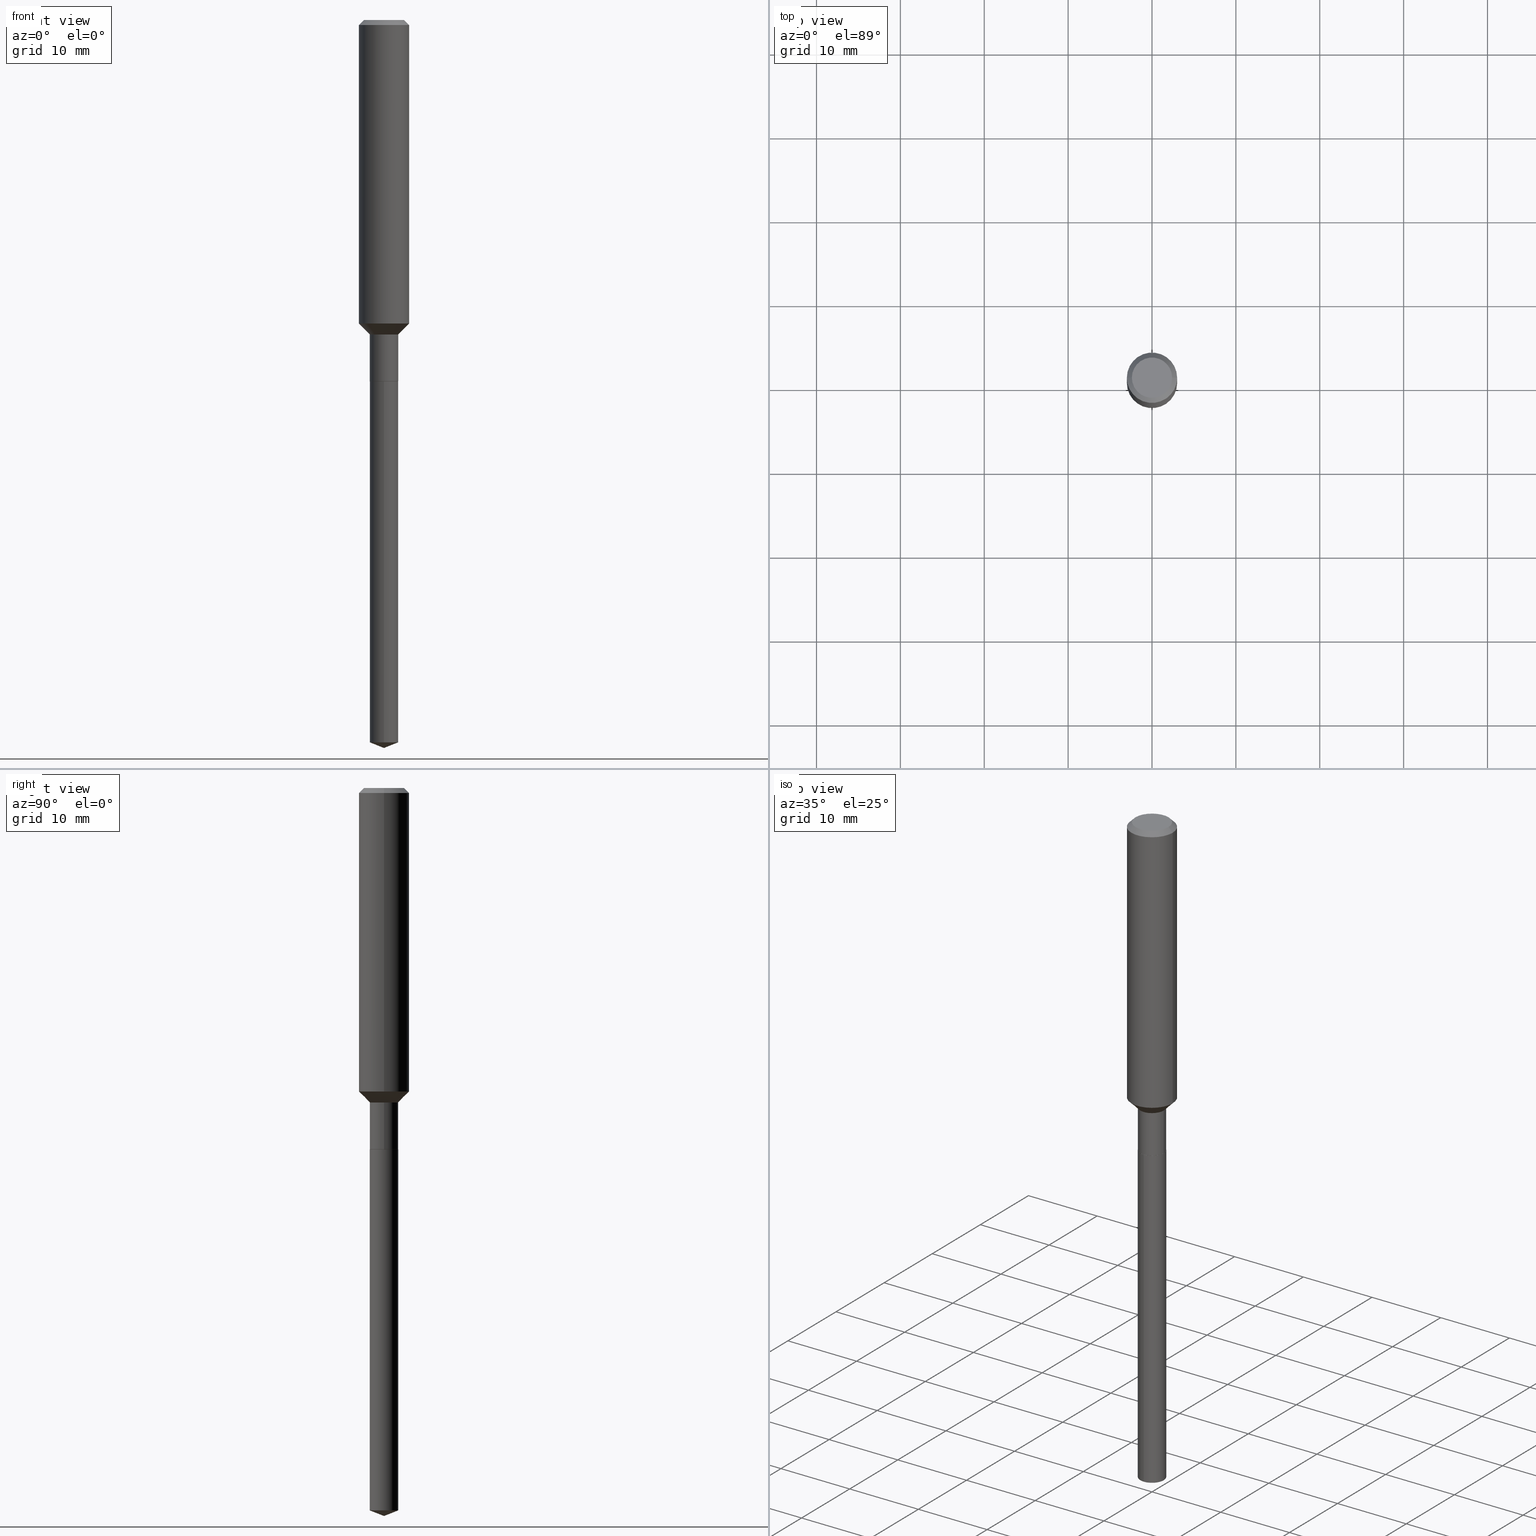
[diagram: canonical four-view strip — front | top / right | iso, engineering-drawing reading convention]
A machine part, canonical four-view strip (front | top / right | iso — engineering-drawing reading convention). The complete STEP part file that produces these views, byte-faithful:
ISO-10303-21;
HEADER;
FILE_DESCRIPTION (( 'STEP AP203' ),
    '1' );
FILE_NAME ('66713.STEP',
    '2024-04-25T04:18:22',
    ( '' ),
    ( '' ),
    'SwSTEP 2.0',
    'SolidWorks 2023',
    '' );
FILE_SCHEMA (( 'CONFIG_CONTROL_DESIGN' ));
ENDSEC;

DATA;
#1 = CARTESIAN_POINT ( 'NONE',  ( 0.06644999999999999518, -6.387665109413531627E-15, -1.696599999999999664 ) ) ;
#2 = AXIS2_PLACEMENT_3D ( 'NONE', #369, #33, #214 ) ;
#3 = EDGE_CURVE ( 'NONE', #360, #18, #206, .T. ) ;
#4 = DIRECTION ( 'NONE',  ( -2.445468806185136597E-29, 3.491481338843145583E-15, 1.000000000000000000 ) ) ;
#5 = DATE_AND_TIME ( #186, #20 ) ;
#6 = CYLINDRICAL_SURFACE ( 'NONE', #448, 0.1181000000000000799 ) ;
#7 = PERSON_AND_ORGANIZATION_ROLE ( 'creator' ) ;
#8 = CARTESIAN_POINT ( 'NONE',  ( 3.609267411048642290E-29, -5.153077307998597760E-15, -1.475899999999999768 ) ) ;
#9 = PERSON_AND_ORGANIZATION ( #481, #216 ) ;
#10 = EDGE_LOOP ( 'NONE', ( #167, #246, #301 ) ) ;
#11 = CC_DESIGN_DATE_AND_TIME_ASSIGNMENT ( #83, #228, ( #192 ) ) ;
#12 = AXIS2_PLACEMENT_3D ( 'NONE', #410, #368, #253 ) ;
#13 = CC_DESIGN_APPROVAL ( #304, ( #262 ) ) ;
#14 = CARTESIAN_POINT ( 'NONE',  ( 4.148982376573702173E-29, -5.923647239481279412E-15, -1.696599999999999664 ) ) ;
#15 = COORDINATED_UNIVERSAL_TIME_OFFSET ( 5, 0, .BEHIND. ) ;
#16 = DIRECTION ( 'NONE',  ( -2.445468806185136597E-29, 3.491481338843145583E-15, 1.000000000000000000 ) ) ;
#17 = CARTESIAN_POINT ( 'NONE',  ( 4.148982376573702173E-29, -5.923647239481279412E-15, -1.696599999999999664 ) ) ;
#18 = VERTEX_POINT ( 'NONE', #365 ) ;
#19 = AXIS2_PLACEMENT_3D ( 'NONE', #185, #4, #112 ) ;
#20 = LOCAL_TIME ( 0, 18, 22.00000000000000000, #461 ) ;
#21 = PLANE ( 'NONE',  #449 ) ;
#22 = DIRECTION ( 'NONE',  ( 1.000000000000000000, -6.982962677686262766E-15, 0.000000000000000000 ) ) ;
#23 = ORIENTED_EDGE ( 'NONE', *, *, #273, .T. ) ;
#24 = LINE ( 'NONE', #165, #215 ) ;
#25 = DIRECTION ( 'NONE',  ( -2.440812294718397094E-29, 3.498149728295689980E-15, 1.000000000000000000 ) ) ;
#26 = CARTESIAN_POINT ( 'NONE',  ( 4.148982376573702173E-29, -5.923647239481279412E-15, -1.696599999999999664 ) ) ;
#27 = ORIENTED_EDGE ( 'NONE', *, *, #183, .T. ) ;
#28 = CONICAL_SURFACE ( 'NONE', #231, 0.06644999999999999518, 0.7853981633975507526 ) ;
#29 = DIRECTION ( 'NONE',  ( -2.445468806185136597E-29, 3.491481338843145583E-15, 1.000000000000000000 ) ) ;
#30 = PLANE ( 'NONE',  #159 ) ;
#31 = DIRECTION ( 'NONE',  ( -1.000000000000000000, 6.982962677686265922E-15, -4.876176775795935793E-29 ) ) ;
#32 = CIRCLE ( 'NONE', #458, 0.06694999999999996787 ) ;
#33 = DIRECTION ( 'NONE',  ( -2.440812294718397094E-29, 3.498149728295689980E-15, 1.000000000000000000 ) ) ;
#34 = FACE_OUTER_BOUND ( 'NONE', #247, .T. ) ;
#35 = DIRECTION ( 'NONE',  ( -2.440812294718397375E-29, 3.498149728295689980E-15, 1.000000000000000000 ) ) ;
#36 = DIRECTION ( 'NONE',  ( 1.000000000000000000, -6.982962677686267499E-15, 4.875432709231658792E-29 ) ) ;
#37 = VECTOR ( 'NONE', #64, 39.37007874015748143 ) ;
#38 = APPROVAL_STATUS ( 'not_yet_approved' ) ;
#39 = CC_DESIGN_SECURITY_CLASSIFICATION ( #192, ( #262 ) ) ;
#40 = VERTEX_POINT ( 'NONE', #478 ) ;
#41 = EDGE_CURVE ( 'NONE', #484, #325, #229, .T. ) ;
#42 = EDGE_LOOP ( 'NONE', ( #311, #472 ) ) ;
#43 = LINE ( 'NONE', #151, #102 ) ;
#44 = SHAPE_DEFINITION_REPRESENTATION ( #171, #133 ) ;
#45 = ORIENTED_EDGE ( 'NONE', *, *, #41, .T. ) ;
#46 = COORDINATED_UNIVERSAL_TIME_OFFSET ( 5, 0, .BEHIND. ) ;
#47 = EDGE_LOOP ( 'NONE', ( #270, #55, #317, #187 ) ) ;
#48 = CIRCLE ( 'NONE', #457, 0.06694999999999996787 ) ;
#49 = DIRECTION ( 'NONE',  ( 1.000000000000000000, -6.982962677686266711E-15, 4.876176775795936353E-29 ) ) ;
#50 = VERTEX_POINT ( 'NONE', #476 ) ;
#51 = EDGE_CURVE ( 'NONE', #160, #84, #343, .T. ) ;
#52 = DIRECTION ( 'NONE',  ( 1.000000000000000000, -6.982962677686272233E-15, 0.000000000000000000 ) ) ;
#53 = ORIENTED_EDGE ( 'NONE', *, *, #134, .T. ) ;
#54 = CARTESIAN_POINT ( 'NONE',  ( -0.06694999999999996787, -4.677368946407211013E-15, -1.475899999999999768 ) ) ;
#55 = ORIENTED_EDGE ( 'NONE', *, *, #321, .T. ) ;
#56 = VECTOR ( 'NONE', #445, 39.37007874015748143 ) ;
#57 = APPROVAL_PERSON_ORGANIZATION ( #71, #304, #239 ) ;
#58 = EDGE_CURVE ( 'NONE', #342, #40, #471, .T. ) ;
#59 = ORIENTED_EDGE ( 'NONE', *, *, #3, .T. ) ;
#60 = ORIENTED_EDGE ( 'NONE', *, *, #312, .F. ) ;
#61 = CARTESIAN_POINT ( 'NONE',  ( 4.148982376573702173E-29, -5.923647239481279412E-15, -1.696599999999999664 ) ) ;
#62 = CARTESIAN_POINT ( 'NONE',  ( 4.757083615914697751E-16, 0.06694999999998814399, -3.390627693657579655 ) ) ;
#63 = ORIENTED_EDGE ( 'NONE', *, *, #51, .T. ) ;
#64 = DIRECTION ( 'NONE',  ( 0.7071067811865459074, -7.319954787623251312E-15, -0.7071067811865492381 ) ) ;
#65 = CIRCLE ( 'NONE', #12, 0.1180999999999999966 ) ;
#66 = AXIS2_PLACEMENT_3D ( 'NONE', #126, #234, #194 ) ;
#67 = LINE ( 'NONE', #144, #37 ) ;
#68 = ADVANCED_FACE ( 'NONE', ( #357 ), #131, .F. ) ;
#69 = DIRECTION ( 'NONE',  ( -2.445468806185136597E-29, 3.491481338843145583E-15, 1.000000000000000000 ) ) ;
#70 = LINE ( 'NONE', #106, #56 ) ;
#71 = PERSON_AND_ORGANIZATION ( #481, #216 ) ;
#72 = DIRECTION ( 'NONE',  ( -2.445468806185136597E-29, 3.491481338843145583E-15, 1.000000000000000000 ) ) ;
#73 = ORIENTED_EDGE ( 'NONE', *, *, #148, .F. ) ;
#74 = FACE_OUTER_BOUND ( 'NONE', #92, .T. ) ;
#75 = AXIS2_PLACEMENT_3D ( 'NONE', #88, #235, #240 ) ;
#76 = COORDINATED_UNIVERSAL_TIME_OFFSET ( 5, 0, .BEHIND. ) ;
#77 = ORIENTED_EDGE ( 'NONE', *, *, #337, .T. ) ;
#78 = APPROVAL ( #38, 'UNSPECIFIED' ) ;
#79 = APPROVAL_ROLE ( '' ) ;
#80 = ORIENTED_EDGE ( 'NONE', *, *, #451, .F. ) ;
#81 = APPROVAL_DATE_TIME ( #264, #304 ) ;
#82 = DIRECTION ( 'NONE',  ( -2.445468806185136597E-29, 3.491481338843145583E-15, 1.000000000000000000 ) ) ;
#83 = DATE_AND_TIME ( #158, #114 ) ;
#84 = VERTEX_POINT ( 'NONE', #62 ) ;
#85 = AXIS2_PLACEMENT_3D ( 'NONE', #248, #173, #142 ) ;
#86 = LOCAL_TIME ( 0, 18, 22.00000000000000000, #46 ) ;
#87 = FACE_OUTER_BOUND ( 'NONE', #432, .T. ) ;
#88 = CARTESIAN_POINT ( 'NONE',  ( 5.776197320209328408E-31, -8.246878922347560526E-17, -0.02362000000000014435 ) ) ;
#89 = ADVANCED_FACE ( 'NONE', ( #366 ), #28, .T. ) ;
#90 = APPROVAL_STATUS ( 'not_yet_approved' ) ;
#91 = ORIENTED_EDGE ( 'NONE', *, *, #261, .T. ) ;
#92 = EDGE_LOOP ( 'NONE', ( #395, #429, #297, #275 ) ) ;
#93 = CARTESIAN_POINT ( 'NONE',  ( 0.06694999999999996787, -5.620586659269693771E-15, -1.475899999999999768 ) ) ;
#94 = ORIENTED_EDGE ( 'NONE', *, *, #218, .T. ) ;
#95 = VECTOR ( 'NONE', #490, 39.37007874015748143 ) ;
#96 = AXIS2_PLACEMENT_3D ( 'NONE', #394, #313, #49 ) ;
#97 = DIRECTION ( 'NONE',  ( 1.000000000000000000, -6.982962677686270655E-15, 0.000000000000000000 ) ) ;
#98 = ORIENTED_EDGE ( 'NONE', *, *, #110, .F. ) ;
#99 = CARTESIAN_POINT ( 'NONE',  ( -4.675093512710124900E-16, -0.06695000000001181950, -3.390627693657579655 ) ) ;
#100 = VERTEX_POINT ( 'NONE', #127 ) ;
#101 = CARTESIAN_POINT ( 'NONE',  ( 0.06694999999999996787, -5.620586659269693771E-15, -1.475899999999999768 ) ) ;
#102 = VECTOR ( 'NONE', #35, 39.37007874015748143 ) ;
#103 = DIRECTION ( 'NONE',  ( 2.438088387897960049E-29, -3.491481338843145188E-15, -1.000000000000000000 ) ) ;
#104 =( NAMED_UNIT ( * ) SI_UNIT ( $, .STERADIAN. ) SOLID_ANGLE_UNIT ( ) );
#105 = CARTESIAN_POINT ( 'NONE',  ( 0.000000000000000000, 0.000000000000000000, 0.000000000000000000 ) ) ;
#106 = CARTESIAN_POINT ( 'NONE',  ( 8.356194637273937331E-29, -1.193055044249599662E-14, -3.416999999999999815 ) ) ;
#107 = AXIS2_PLACEMENT_3D ( 'NONE', #278, #156, #201 ) ;
#108 = CC_DESIGN_APPROVAL ( #416, ( #192 ) ) ;
#109 = DIRECTION ( 'NONE',  ( -6.982962677686266711E-15, -1.000000000000000000, 0.000000000000000000 ) ) ;
#110 = EDGE_CURVE ( 'NONE', #350, #360, #243, .T. ) ;
#111 = ORIENTED_EDGE ( 'NONE', *, *, #384, .F. ) ;
#112 = DIRECTION ( 'NONE',  ( 1.000000000000000000, -6.982962677686267499E-15, 4.875432709231658792E-29 ) ) ;
#113 = CONICAL_SURFACE ( 'NONE', #85, 0.1180999999999999966, 0.7853981633974459475 ) ;
#114 = LOCAL_TIME ( 0, 18, 22.00000000000000000, #15 ) ;
#115 = CARTESIAN_POINT ( 'NONE',  ( -0.06694999999999999563, -5.061781041813841087E-15, -1.696099999999999719 ) ) ;
#116 = APPROVAL_STATUS ( 'not_yet_approved' ) ;
#117 = FACE_OUTER_BOUND ( 'NONE', #42, .T. ) ;
#118 = EDGE_CURVE ( 'NONE', #446, #50, #222, .T. ) ;
#119 = CARTESIAN_POINT ( 'NONE',  ( 3.609267411048642290E-29, -5.153077307998597760E-15, -1.475899999999999768 ) ) ;
#120 = PERSON_AND_ORGANIZATION_ROLE ( 'design_supplier' ) ;
#121 = AXIS2_PLACEMENT_3D ( 'NONE', #284, #25, #164 ) ;
#122 = AXIS2_PLACEMENT_3D ( 'NONE', #316, #123, #436 ) ;
#123 = DIRECTION ( 'NONE',  ( -2.445468806185136597E-29, 3.491481338843145583E-15, 1.000000000000000000 ) ) ;
#124 = ADVANCED_FACE ( 'NONE', ( #402 ), #334, .T. ) ;
#125 = DIRECTION ( 'NONE',  ( 2.440812294718396814E-29, -3.498149728295689980E-15, -1.000000000000000000 ) ) ;
#126 = CARTESIAN_POINT ( 'NONE',  ( -8.774681638460052633E-28, 1.257805662158206375E-13, 35.95307874015747984 ) ) ;
#127 = CARTESIAN_POINT ( 'NONE',  ( -0.09447999999999998066, 7.009847083995354710E-16, -1.928573779297727792E-17 ) ) ;
#128 = DIRECTION ( 'NONE',  ( -2.445468806185136597E-29, 3.491481338843145583E-15, 1.000000000000000000 ) ) ;
#129 = ORIENTED_EDGE ( 'NONE', *, *, #312, .T. ) ;
#130 = AXIS2_PLACEMENT_3D ( 'NONE', #61, #138, #430 ) ;
#131 = PLANE ( 'NONE',  #250 ) ;
#132 = ORIENTED_EDGE ( 'NONE', *, *, #257, .F. ) ;
#133 = ADVANCED_BREP_SHAPE_REPRESENTATION ( '66713', ( #349, #348, #306 ), #329 ) ;
#134 = EDGE_CURVE ( 'NONE', #274, #18, #48, .T. ) ;
#135 = CYLINDRICAL_SURFACE ( 'NONE', #441, 0.06694999999999998175 ) ;
#136 = CARTESIAN_POINT ( 'NONE',  ( 4.147759642170609372E-29, -5.921901498811857909E-15, -1.696099999999999719 ) ) ;
#137 = AXIS2_PLACEMENT_3D ( 'NONE', #287, #72, #489 ) ;
#138 = DIRECTION ( 'NONE',  ( -2.440812294718397094E-29, 3.498149728295689980E-15, 1.000000000000000000 ) ) ;
#139 = FACE_OUTER_BOUND ( 'NONE', #328, .T. ) ;
#140 = APPROVAL_DATE_TIME ( #5, #78 ) ;
#141 = EDGE_CURVE ( 'NONE', #100, #50, #452, .T. ) ;
#142 = DIRECTION ( 'NONE',  ( -1.000000000000000000, 6.982962677686266711E-15, 0.000000000000000000 ) ) ;
#143 = PRODUCT_RELATED_PRODUCT_CATEGORY ( 'detail', '', ( #193 ) ) ;
#144 = CARTESIAN_POINT ( 'NONE',  ( 0.1180999999999999966, -8.926936027602933910E-16, -0.02362000000000014435 ) ) ;
#145 = VECTOR ( 'NONE', #147, 39.37007874015748143 ) ;
#146 = DIRECTION ( 'NONE',  ( -2.445468806185136877E-29, 3.491481338843145188E-15, 1.000000000000000000 ) ) ;
#147 = DIRECTION ( 'NONE',  ( -0.7071067811865483499, 7.493145998870357316E-15, 0.7071067811865466846 ) ) ;
#148 = EDGE_CURVE ( 'NONE', #360, #350, #374, .T. ) ;
#149 = CARTESIAN_POINT ( 'NONE',  ( -0.06644999999999999518, -5.448842364394582362E-15, -1.696599999999999664 ) ) ;
#150 = PERSON_AND_ORGANIZATION ( #481, #216 ) ;
#151 = CARTESIAN_POINT ( 'NONE',  ( 4.757083615914285572E-16, 0.06694999999999408369, -1.696599999999999886 ) ) ;
#152 = DIRECTION ( 'NONE',  ( -2.445468806185136597E-29, 3.491481338843145583E-15, 1.000000000000000000 ) ) ;
#153 = ADVANCED_FACE ( 'NONE', ( #139 ), #113, .T. ) ;
#154 = LINE ( 'NONE', #93, #352 ) ;
#155 = VERTEX_POINT ( 'NONE', #217 ) ;
#156 = DIRECTION ( 'NONE',  ( 2.445468806185136597E-29, -3.491481338843145583E-15, -1.000000000000000000 ) ) ;
#157 = CARTESIAN_POINT ( 'NONE',  ( 4.148982376573702173E-29, -5.923647239481279412E-15, -1.696599999999999664 ) ) ;
#158 = CALENDAR_DATE ( 2024, 25, 4 ) ;
#159 = AXIS2_PLACEMENT_3D ( 'NONE', #209, #103, #31 ) ;
#160 = VERTEX_POINT ( 'NONE', #99 ) ;
#161 = AXIS2_PLACEMENT_3D ( 'NONE', #431, #82, #474 ) ;
#162 = ORIENTED_EDGE ( 'NONE', *, *, #377, .T. ) ;
#163 = DIRECTION ( 'NONE',  ( -6.982962677686265133E-15, -1.000000000000000000, 4.080430162306592105E-15 ) ) ;
#164 = DIRECTION ( 'NONE',  ( -6.982962677686266711E-15, -1.000000000000000000, 0.000000000000000000 ) ) ;
#165 = CARTESIAN_POINT ( 'NONE',  ( 8.340255611052763321E-29, -1.195317762158637043E-14, -3.416999999999999815 ) ) ;
#166 = ORIENTED_EDGE ( 'NONE', *, *, #288, .T. ) ;
#167 = ORIENTED_EDGE ( 'NONE', *, *, #183, .F. ) ;
#168 = CIRCLE ( 'NONE', #473, 0.06694999999999999563 ) ;
#169 = EDGE_CURVE ( 'NONE', #350, #274, #456, .T. ) ;
#170 =( LENGTH_UNIT ( ) NAMED_UNIT ( * ) SI_UNIT ( $, .METRE. ) );
#171 = PRODUCT_DEFINITION_SHAPE ( 'NONE', 'NONE',  #184 ) ;
#172 = CARTESIAN_POINT ( 'NONE',  ( -0.1180999999999999966, 7.422191030112725094E-16, -0.02362000000000014435 ) ) ;
#173 = DIRECTION ( 'NONE',  ( 2.445468806185136597E-29, -3.491481338843145583E-15, -1.000000000000000000 ) ) ;
#174 = CARTESIAN_POINT ( 'NONE',  ( 3.484181681612272465E-29, -4.974488037516770451E-15, -1.424749999999999517 ) ) ;
#175 = DIMENSIONAL_EXPONENTS ( 1.000000000000000000, 0.000000000000000000, 0.000000000000000000, 0.000000000000000000, 0.000000000000000000, 0.000000000000000000, 0.000000000000000000 ) ;
#176 = FACE_OUTER_BOUND ( 'NONE', #443, .T. ) ;
#177 = VECTOR ( 'NONE', #423, 39.37007874015748143 ) ;
#178 = DIRECTION ( 'NONE',  ( -0.7071067811866199593, 7.493145998870616062E-15, 0.7071067811864750752 ) ) ;
#179 = CC_DESIGN_PERSON_AND_ORGANIZATION_ASSIGNMENT ( #9, #469, ( #192 ) ) ;
#180 = DIRECTION ( 'NONE',  ( 1.000000000000000000, -6.982962677686266711E-15, 4.876176775795936353E-29 ) ) ;
#181 = CARTESIAN_POINT ( 'NONE',  ( -4.675093512710540038E-16, -0.06695000000000592144, -1.696599999999999220 ) ) ;
#182 = ORIENTED_EDGE ( 'NONE', *, *, #454, .T. ) ;
#183 = EDGE_CURVE ( 'NONE', #155, #84, #70, .T. ) ;
#184 = PRODUCT_DEFINITION ( 'UNKNOWN', '', #262, #339 ) ;
#185 = CARTESIAN_POINT ( 'NONE',  ( 4.716267017698007905E-46, -6.733579360998555036E-32, -1.928573779297252010E-17 ) ) ;
#186 = CALENDAR_DATE ( 2024, 25, 4 ) ;
#187 = ORIENTED_EDGE ( 'NONE', *, *, #377, .F. ) ;
#188 = CARTESIAN_POINT ( 'NONE',  ( 0.1181000000000001632, -5.799175929751520291E-15, -1.424749999999999517 ) ) ;
#189 = LINE ( 'NONE', #181, #177 ) ;
#190 = ORIENTED_EDGE ( 'NONE', *, *, #346, .T. ) ;
#191 = AXIS2_PLACEMENT_3D ( 'NONE', #8, #152, #307 ) ;
#192 = SECURITY_CLASSIFICATION ( '', '', #314 ) ;
#193 = PRODUCT ( '66713', '66713', '', ( #341 ) ) ;
#194 = DIRECTION ( 'NONE',  ( -6.982962677686266711E-15, -1.000000000000000000, 3.498627837350013689E-15 ) ) ;
#195 = ORIENTED_EDGE ( 'NONE', *, *, #372, .F. ) ;
#196 = LINE ( 'NONE', #362, #393 ) ;
#197 = COORDINATED_UNIVERSAL_TIME_OFFSET ( 5, 0, .BEHIND. ) ;
#198 = EDGE_LOOP ( 'NONE', ( #53, #241, #224, #111 ) ) ;
#199 = ORIENTED_EDGE ( 'NONE', *, *, #148, .T. ) ;
#200 = CARTESIAN_POINT ( 'NONE',  ( 4.757083615914702682E-16, 0.06694999999999406981, -1.696599999999999886 ) ) ;
#201 = DIRECTION ( 'NONE',  ( -1.000000000000000000, 6.982962677686266711E-15, 0.000000000000000000 ) ) ;
#202 = AXIS2_PLACEMENT_3D ( 'NONE', #347, #298, #109 ) ;
#203 = ORIENTED_EDGE ( 'NONE', *, *, #141, .T. ) ;
#204 = LOCAL_TIME ( 0, 18, 22.00000000000000000, #76 ) ;
#205 = FACE_OUTER_BOUND ( 'NONE', #265, .T. ) ;
#206 = LINE ( 'NONE', #398, #463 ) ;
#207 = EDGE_LOOP ( 'NONE', ( #45, #94, #98, #132 ) ) ;
#208 = ORIENTED_EDGE ( 'NONE', *, *, #141, .F. ) ;
#209 = CARTESIAN_POINT ( 'NONE',  ( 2.358133508849003952E-46, -3.366789680499277518E-32, -9.642868896486260050E-18 ) ) ;
#210 = DIRECTION ( 'NONE',  ( -2.445468806185136597E-29, 3.491481338843145583E-15, 1.000000000000000000 ) ) ;
#211 = ADVANCED_FACE ( 'NONE', ( #34 ), #135, .T. ) ;
#212 = DIRECTION ( 'NONE',  ( -2.445468806185136877E-29, 3.491481338843145188E-15, 1.000000000000000000 ) ) ;
#213 = CC_DESIGN_PERSON_AND_ORGANIZATION_ASSIGNMENT ( #354, #7, ( #262 ) ) ;
#214 = DIRECTION ( 'NONE',  ( -6.982962677686266711E-15, -1.000000000000000000, 4.080430162306592105E-15 ) ) ;
#215 = VECTOR ( 'NONE', #324, 39.37007874015748854 ) ;
#216 = ORGANIZATION ( 'UNSPECIFIED', 'UNSPECIFIED', '' ) ;
#217 = CARTESIAN_POINT ( 'NONE',  ( 8.340255611052762200E-29, -1.195317762158637043E-14, -3.416999999999999815 ) ) ;
#218 = EDGE_CURVE ( 'NONE', #325, #360, #255, .T. ) ;
#219 = FACE_OUTER_BOUND ( 'NONE', #388, .T. ) ;
#220 = APPROVAL_ROLE ( '' ) ;
#221 = ORIENTED_EDGE ( 'NONE', *, *, #396, .T. ) ;
#222 = CIRCLE ( 'NONE', #75, 0.1180999999999999966 ) ;
#223 = CC_DESIGN_APPROVAL ( #78, ( #184 ) ) ;
#224 = ORIENTED_EDGE ( 'NONE', *, *, #58, .F. ) ;
#225 = ADVANCED_FACE ( 'NONE', ( #290 ), #30, .F. ) ;
#226 = CARTESIAN_POINT ( 'NONE',  ( 0.000000000000000000, 0.000000000000000000, 0.000000000000000000 ) ) ;
#227 = EDGE_LOOP ( 'NONE', ( #320, #59, #277, #462 ) ) ;
#228 = DATE_TIME_ROLE ( 'classification_date' ) ;
#229 = CIRCLE ( 'NONE', #271, 0.06644999999999999518 ) ;
#230 = CYLINDRICAL_SURFACE ( 'NONE', #96, 0.1181000000000000799 ) ;
#231 = AXIS2_PLACEMENT_3D ( 'NONE', #26, #16, #438 ) ;
#232 = APPROVAL_PERSON_ORGANIZATION ( #465, #416, #79 ) ;
#233 = ORIENTED_EDGE ( 'NONE', *, *, #261, .F. ) ;
#234 = DIRECTION ( 'NONE',  ( -2.440812294718397094E-29, 3.498149728295689980E-15, 1.000000000000000000 ) ) ;
#235 = DIRECTION ( 'NONE',  ( -2.445468806185136597E-29, 3.491481338843145583E-15, 1.000000000000000000 ) ) ;
#236 = ADVANCED_FACE ( 'NONE', ( #450 ), #331, .T. ) ;
#237 = EDGE_LOOP ( 'NONE', ( #195, #27, #444 ) ) ;
#238 = LINE ( 'NONE', #54, #145 ) ;
#239 = APPROVAL_ROLE ( '' ) ;
#240 = DIRECTION ( 'NONE',  ( 1.000000000000000000, -6.982962677686266711E-15, 0.000000000000000000 ) ) ;
#241 = ORIENTED_EDGE ( 'NONE', *, *, #459, .T. ) ;
#242 = DIRECTION ( 'NONE',  ( -2.438088387897960049E-29, 3.491481338843145188E-15, 1.000000000000000000 ) ) ;
#243 = CIRCLE ( 'NONE', #122, 0.06694999999999999563 ) ;
#244 = CIRCLE ( 'NONE', #202, 0.06694999999999999563 ) ;
#245 = VERTEX_POINT ( 'NONE', #371 ) ;
#246 = ORIENTED_EDGE ( 'NONE', *, *, #372, .T. ) ;
#247 = EDGE_LOOP ( 'NONE', ( #466, #199, #323, #80 ) ) ;
#248 = CARTESIAN_POINT ( 'NONE',  ( 5.776197320209328408E-31, -8.246878922347560526E-17, -0.02362000000000014435 ) ) ;
#249 = CARTESIAN_POINT ( 'NONE',  ( 3.609267411048642290E-29, -5.153077307998597760E-15, -1.475899999999999768 ) ) ;
#250 = AXIS2_PLACEMENT_3D ( 'NONE', #157, #125, #406 ) ;
#251 = DIRECTION ( 'NONE',  ( -2.445468806185136597E-29, 3.491481338843145583E-15, 1.000000000000000000 ) ) ;
#252 = ADVANCED_FACE ( 'NONE', ( #373 ), #433, .T. ) ;
#253 = DIRECTION ( 'NONE',  ( 1.000000000000000000, -6.982962677686266711E-15, 0.000000000000000000 ) ) ;
#254 = DATE_AND_TIME ( #453, #204 ) ;
#255 = LINE ( 'NONE', #340, #256 ) ;
#256 = VECTOR ( 'NONE', #178, 39.37007874015748143 ) ;
#257 = EDGE_CURVE ( 'NONE', #484, #350, #447, .T. ) ;
#258 = LINE ( 'NONE', #263, #383 ) ;
#259 = PERSON_AND_ORGANIZATION ( #481, #216 ) ;
#260 = ORIENTED_EDGE ( 'NONE', *, *, #118, .T. ) ;
#261 = EDGE_CURVE ( 'NONE', #363, #446, #67, .T. ) ;
#262 = PRODUCT_DEFINITION_FORMATION_WITH_SPECIFIED_SOURCE ( 'ANY', '', #193, .NOT_KNOWN. ) ;
#263 = CARTESIAN_POINT ( 'NONE',  ( -0.1181000000000000799, 8.391509709326788873E-16, -5.809262341591047988E-30 ) ) ;
#264 = DATE_AND_TIME ( #387, #335 ) ;
#265 = EDGE_LOOP ( 'NONE', ( #233, #268, #203, #23 ) ) ;
#266 = CC_DESIGN_PERSON_AND_ORGANIZATION_ASSIGNMENT ( #426, #120, ( #262 ) ) ;
#267 = DIRECTION ( 'NONE',  ( 1.000000000000000000, -6.982962677686262766E-15, 0.000000000000000000 ) ) ;
#268 = ORIENTED_EDGE ( 'NONE', *, *, #299, .F. ) ;
#269 = CARTESIAN_POINT ( 'NONE',  ( 4.148982376573702173E-29, -5.923647239481279412E-15, -1.696599999999999664 ) ) ;
#270 = ORIENTED_EDGE ( 'NONE', *, *, #58, .T. ) ;
#271 = AXIS2_PLACEMENT_3D ( 'NONE', #483, #470, #22 ) ;
#272 = VECTOR ( 'NONE', #333, 39.37007874015748143 ) ;
#273 = EDGE_CURVE ( 'NONE', #50, #446, #65, .T. ) ;
#274 = VERTEX_POINT ( 'NONE', #101 ) ;
#275 = ORIENTED_EDGE ( 'NONE', *, *, #286, .F. ) ;
#276 = CARTESIAN_POINT ( 'NONE',  ( 4.148982376573702173E-29, -5.923647239481279412E-15, -1.696599999999999664 ) ) ;
#277 = ORIENTED_EDGE ( 'NONE', *, *, #134, .F. ) ;
#278 = CARTESIAN_POINT ( 'NONE',  ( 5.776197320209328408E-31, -8.246878922347560526E-17, -0.02362000000000014435 ) ) ;
#279 = ORIENTED_EDGE ( 'NONE', *, *, #396, .F. ) ;
#280 = ADVANCED_FACE ( 'NONE', ( #486 ), #487, .T. ) ;
#281 = CIRCLE ( 'NONE', #418, 0.09447999999999998066 ) ;
#282 = ORIENTED_EDGE ( 'NONE', *, *, #454, .F. ) ;
#283 = CARTESIAN_POINT ( 'NONE',  ( 0.06644999999999999518, -6.387665109413531627E-15, -1.696599999999999664 ) ) ;
#284 = CARTESIAN_POINT ( 'NONE',  ( 8.283785998846573452E-29, -1.184960975577491673E-14, -3.390627693657579655 ) ) ;
#285 = CARTESIAN_POINT ( 'NONE',  ( -8.774681638460052633E-28, 1.257805662158206375E-13, 35.95307874015747984 ) ) ;
#286 = EDGE_CURVE ( 'NONE', #40, #342, #305, .T. ) ;
#287 = CARTESIAN_POINT ( 'NONE',  ( 0.000000000000000000, 0.000000000000000000, 0.000000000000000000 ) ) ;
#288 = EDGE_CURVE ( 'NONE', #363, #100, #281, .T. ) ;
#289 = CIRCLE ( 'NONE', #327, 0.06644999999999999518 ) ;
#290 = FACE_OUTER_BOUND ( 'NONE', #400, .T. ) ;
#291 = CARTESIAN_POINT ( 'NONE',  ( 0.000000000000000000, 0.000000000000000000, 0.000000000000000000 ) ) ;
#292 = CARTESIAN_POINT ( 'NONE',  ( 3.609267411048642290E-29, -5.153077307998597760E-15, -1.475899999999999768 ) ) ;
#293 = DIRECTION ( 'NONE',  ( -2.445468806185136597E-29, 3.491481338843145583E-15, 1.000000000000000000 ) ) ;
#294 = AXIS2_PLACEMENT_3D ( 'NONE', #136, #210, #414 ) ;
#295 = ADVANCED_FACE ( 'NONE', ( #219 ), #6, .T. ) ;
#296 = APPLICATION_PROTOCOL_DEFINITION ( 'international standard', 'config_control_design', 1994, #419 ) ;
#297 = ORIENTED_EDGE ( 'NONE', *, *, #384, .T. ) ;
#298 = DIRECTION ( 'NONE',  ( -2.440812294718397094E-29, 3.498149728295689980E-15, 1.000000000000000000 ) ) ;
#299 = EDGE_CURVE ( 'NONE', #100, #363, #318, .T. ) ;
#300 = PERSON_AND_ORGANIZATION_ROLE ( 'creator' ) ;
#301 = ORIENTED_EDGE ( 'NONE', *, *, #346, .F. ) ;
#302 = CARTESIAN_POINT ( 'NONE',  ( 4.716267017698007905E-46, -6.733579360998555036E-32, -1.928573779297252010E-17 ) ) ;
#303 = CALENDAR_DATE ( 2024, 25, 4 ) ;
#304 = APPROVAL ( #116, 'UNSPECIFIED' ) ;
#305 = CIRCLE ( 'NONE', #409, 0.1181000000000001632 ) ;
#306 = AXIS2_PLACEMENT_3D ( 'NONE', #291, #455, #338 ) ;
#307 = DIRECTION ( 'NONE',  ( 1.000000000000000000, -6.982962677686272233E-15, 0.000000000000000000 ) ) ;
#308 = ORIENTED_EDGE ( 'NONE', *, *, #356, .T. ) ;
#309 = DIRECTION ( 'NONE',  ( -2.440812294718397094E-29, 3.498149728295689980E-15, 1.000000000000000000 ) ) ;
#310 = DATE_AND_TIME ( #303, #86 ) ;
#311 = ORIENTED_EDGE ( 'NONE', *, *, #41, .F. ) ;
#312 = EDGE_CURVE ( 'NONE', #84, #467, #43, .T. ) ;
#313 = DIRECTION ( 'NONE',  ( -2.445468806185136597E-29, 3.491481338843145583E-15, 1.000000000000000000 ) ) ;
#314 = SECURITY_CLASSIFICATION_LEVEL ( 'unclassified' ) ;
#315 = CYLINDRICAL_SURFACE ( 'NONE', #130, 0.06694999999999999563 ) ;
#316 = CARTESIAN_POINT ( 'NONE',  ( 4.147759642170609372E-29, -5.921901498811857909E-15, -1.696099999999999719 ) ) ;
#317 = ORIENTED_EDGE ( 'NONE', *, *, #118, .F. ) ;
#318 = CIRCLE ( 'NONE', #19, 0.09447999999999998066 ) ;
#319 = FACE_OUTER_BOUND ( 'NONE', #237, .T. ) ;
#320 = ORIENTED_EDGE ( 'NONE', *, *, #110, .T. ) ;
#321 = EDGE_CURVE ( 'NONE', #40, #50, #258, .T. ) ;
#322 = CARTESIAN_POINT ( 'NONE',  ( 3.484181681612272465E-29, -4.974488037516770451E-15, -1.424749999999999517 ) ) ;
#323 = ORIENTED_EDGE ( 'NONE', *, *, #169, .T. ) ;
#324 = DIRECTION ( 'NONE',  ( -6.497071151882117470E-15, -0.9304175679820243516, 0.3665012267242979127 ) ) ;
#325 = VERTEX_POINT ( 'NONE', #149 ) ;
#326 = CC_DESIGN_DATE_AND_TIME_ASSIGNMENT ( #254, #415, ( #184 ) ) ;
#327 = AXIS2_PLACEMENT_3D ( 'NONE', #14, #293, #267 ) ;
#328 = EDGE_LOOP ( 'NONE', ( #345, #91, #260, #208 ) ) ;
#329 =( GEOMETRIC_REPRESENTATION_CONTEXT ( 3 ) GLOBAL_UNCERTAINTY_ASSIGNED_CONTEXT ( ( #385 ) ) GLOBAL_UNIT_ASSIGNED_CONTEXT ( ( #370, #332, #104 ) ) REPRESENTATION_CONTEXT ( 'NONE', 'WORKASPACE' ) );
#330 = ORIENTED_EDGE ( 'NONE', *, *, #286, .T. ) ;
#331 = CYLINDRICAL_SURFACE ( 'NONE', #2, 0.06694999999999999563 ) ;
#332 =( NAMED_UNIT ( * ) PLANE_ANGLE_UNIT ( ) SI_UNIT ( $, .RADIAN. ) );
#333 = DIRECTION ( 'NONE',  ( 0.7071067811866199593, -2.468850131083015945E-15, 0.7071067811864750752 ) ) ;
#334 = CYLINDRICAL_SURFACE ( 'NONE', #137, 0.06694999999999998175 ) ;
#335 = LOCAL_TIME ( 0, 18, 22.00000000000000000, #197 ) ;
#336 = DIRECTION ( 'NONE',  ( -6.982962677686266711E-15, -1.000000000000000000, 3.498627837350013689E-15 ) ) ;
#337 = EDGE_CURVE ( 'NONE', #325, #484, #289, .T. ) ;
#338 = DIRECTION ( 'NONE',  ( 1.000000000000000000, 0.000000000000000000, 0.000000000000000000 ) ) ;
#339 = DESIGN_CONTEXT ( 'detailed design', #419, 'design' ) ;
#340 = CARTESIAN_POINT ( 'NONE',  ( -0.06644999999999999518, -5.451491591568692774E-15, -1.696599999999999664 ) ) ;
#341 = MECHANICAL_CONTEXT ( 'NONE', #391, 'mechanical' ) ;
#342 = VERTEX_POINT ( 'NONE', #188 ) ;
#343 = CIRCLE ( 'NONE', #121, 0.06694999999999999563 ) ;
#344 = AXIS2_PLACEMENT_3D ( 'NONE', #285, #417, #336 ) ;
#345 = ORIENTED_EDGE ( 'NONE', *, *, #288, .F. ) ;
#346 = EDGE_CURVE ( 'NONE', #84, #160, #244, .T. ) ;
#347 = CARTESIAN_POINT ( 'NONE',  ( 8.283785998846573452E-29, -1.184960975577491673E-14, -3.390627693657579655 ) ) ;
#348 = MANIFOLD_SOLID_BREP ( 'Body-Move/Copy2[2]', #351 ) ;
#349 = MANIFOLD_SOLID_BREP ( 'Body-Move/Copy2[1]', #392 ) ;
#350 = VERTEX_POINT ( 'NONE', #379 ) ;
#351 = CLOSED_SHELL ( 'NONE', ( #89, #153, #422, #280, #124, #211, #358, #295, #361, #225, #407, #420 ) ) ;
#352 = VECTOR ( 'NONE', #404, 39.37007874015748143 ) ;
#353 = DIRECTION ( 'NONE',  ( -2.445468806185136597E-29, 3.491481338843145583E-15, 1.000000000000000000 ) ) ;
#354 = PERSON_AND_ORGANIZATION ( #481, #216 ) ;
#355 = ORIENTED_EDGE ( 'NONE', *, *, #218, .F. ) ;
#356 = EDGE_CURVE ( 'NONE', #160, #245, #189, .T. ) ;
#357 = FACE_OUTER_BOUND ( 'NONE', #480, .T. ) ;
#358 = ADVANCED_FACE ( 'NONE', ( #74 ), #425, .T. ) ;
#359 = DIRECTION ( 'NONE',  ( -2.445468806185136877E-29, 3.491481338843145188E-15, 1.000000000000000000 ) ) ;
#360 = VERTEX_POINT ( 'NONE', #115 ) ;
#361 = ADVANCED_FACE ( 'NONE', ( #205 ), #464, .T. ) ;
#362 = CARTESIAN_POINT ( 'NONE',  ( 0.1181000000000000799, -8.246878922347486570E-16, 5.758764772215004644E-30 ) ) ;
#363 = VERTEX_POINT ( 'NONE', #439 ) ;
#364 = ORIENTED_EDGE ( 'NONE', *, *, #299, .T. ) ;
#365 = CARTESIAN_POINT ( 'NONE',  ( -0.06694999999999996787, -5.061781041813841087E-15, -1.475899999999999768 ) ) ;
#366 = FACE_OUTER_BOUND ( 'NONE', #207, .T. ) ;
#367 = VECTOR ( 'NONE', #212, 39.37007874015748143 ) ;
#368 = DIRECTION ( 'NONE',  ( -2.445468806185136597E-29, 3.491481338843145583E-15, 1.000000000000000000 ) ) ;
#369 = CARTESIAN_POINT ( 'NONE',  ( 4.148982376573702173E-29, -5.923647239481279412E-15, -1.696599999999999664 ) ) ;
#370 =( CONVERSION_BASED_UNIT ( 'INCH', #428 ) LENGTH_UNIT ( ) NAMED_UNIT ( #175 ) );
#371 = CARTESIAN_POINT ( 'NONE',  ( -4.675093512710540038E-16, -0.06695000000000592144, -1.696599999999999220 ) ) ;
#372 = EDGE_CURVE ( 'NONE', #155, #160, #24, .T. ) ;
#373 = FACE_OUTER_BOUND ( 'NONE', #10, .T. ) ;
#374 = CIRCLE ( 'NONE', #294, 0.06694999999999999563 ) ;
#375 = CONICAL_SURFACE ( 'NONE', #66, 99.94676754583970535, 1.195550537616118625 ) ;
#376 = CARTESIAN_POINT ( 'NONE',  ( 0.06694999999999998175, -4.675093512710954190E-16, 3.264600351395378627E-30 ) ) ;
#377 = EDGE_CURVE ( 'NONE', #342, #446, #196, .T. ) ;
#378 = APPLICATION_PROTOCOL_DEFINITION ( 'international standard', 'config_control_design', 1994, #391 ) ;
#379 = CARTESIAN_POINT ( 'NONE',  ( 0.06694999999999999563, -6.389410850082953919E-15, -1.696099999999999719 ) ) ;
#380 = EDGE_LOOP ( 'NONE', ( #60, #190, #308, #282 ) ) ;
#381 = DIRECTION ( 'NONE',  ( 1.000000000000000000, -6.982962677686266711E-15, 4.876176775795936353E-29 ) ) ;
#382 = PERSON_AND_ORGANIZATION_ROLE ( 'design_owner' ) ;
#383 = VECTOR ( 'NONE', #146, 39.37007874015748143 ) ;
#384 = EDGE_CURVE ( 'NONE', #274, #342, #154, .T. ) ;
#385 = UNCERTAINTY_MEASURE_WITH_UNIT (LENGTH_MEASURE( 1.000000000000000082E-05 ), #370, 'distance_accuracy_value', 'NONE');
#386 = DIRECTION ( 'NONE',  ( 1.000000000000000000, -6.982962677686270655E-15, 0.000000000000000000 ) ) ;
#387 = CALENDAR_DATE ( 2024, 25, 4 ) ;
#388 = EDGE_LOOP ( 'NONE', ( #405, #330, #162, #390 ) ) ;
#389 = APPROVAL_DATE_TIME ( #310, #416 ) ;
#390 = ORIENTED_EDGE ( 'NONE', *, *, #273, .F. ) ;
#391 = APPLICATION_CONTEXT ( 'configuration controlled 3d designs of mechanical parts and assemblies' ) ;
#392 = CLOSED_SHELL ( 'NONE', ( #475, #427, #252, #236, #68 ) ) ;
#393 = VECTOR ( 'NONE', #359, 39.37007874015748143 ) ;
#394 = CARTESIAN_POINT ( 'NONE',  ( 0.000000000000000000, 0.000000000000000000, 0.000000000000000000 ) ) ;
#395 = ORIENTED_EDGE ( 'NONE', *, *, #459, .F. ) ;
#396 = EDGE_CURVE ( 'NONE', #245, #467, #168, .T. ) ;
#397 = DIRECTION ( 'NONE',  ( -2.445468806185136597E-29, 3.491481338843145583E-15, 1.000000000000000000 ) ) ;
#398 = CARTESIAN_POINT ( 'NONE',  ( -0.06694999999999998175, 4.757083615913869448E-16, -3.293227042925658365E-30 ) ) ;
#399 = PERSON_AND_ORGANIZATION ( #481, #216 ) ;
#400 = EDGE_LOOP ( 'NONE', ( #364, #166 ) ) ;
#401 = DIRECTION ( 'NONE',  ( -6.982962677686265133E-15, -1.000000000000000000, 4.080430162306592105E-15 ) ) ;
#402 = FACE_OUTER_BOUND ( 'NONE', #227, .T. ) ;
#403 = CC_DESIGN_PERSON_AND_ORGANIZATION_ASSIGNMENT ( #150, #300, ( #184 ) ) ;
#404 = DIRECTION ( 'NONE',  ( 0.7071067811865483499, -2.468850131082265738E-15, 0.7071067811865466846 ) ) ;
#405 = ORIENTED_EDGE ( 'NONE', *, *, #321, .F. ) ;
#406 = DIRECTION ( 'NONE',  ( 6.982962677686265922E-15, 1.000000000000000000, -3.498149728295689980E-15 ) ) ;
#407 = ADVANCED_FACE ( 'NONE', ( #117 ), #21, .F. ) ;
#408 = DIRECTION ( 'NONE',  ( -2.445468806185136597E-29, 3.491481338843145583E-15, 1.000000000000000000 ) ) ;
#409 = AXIS2_PLACEMENT_3D ( 'NONE', #174, #69, #386 ) ;
#410 = CARTESIAN_POINT ( 'NONE',  ( 5.776197320209328408E-31, -8.246878922347560526E-17, -0.02362000000000014435 ) ) ;
#411 = CONICAL_SURFACE ( 'NONE', #161, 0.06644999999999999518, 0.7853981633975507526 ) ;
#412 = CC_DESIGN_PERSON_AND_ORGANIZATION_ASSIGNMENT ( #399, #382, ( #193 ) ) ;
#413 = DIRECTION ( 'NONE',  ( 1.000000000000000000, -6.982962677686272233E-15, 0.000000000000000000 ) ) ;
#414 = DIRECTION ( 'NONE',  ( 1.000000000000000000, -6.982962677686269866E-15, 0.000000000000000000 ) ) ;
#415 = DATE_TIME_ROLE ( 'creation_date' ) ;
#416 = APPROVAL ( #90, 'UNSPECIFIED' ) ;
#417 = DIRECTION ( 'NONE',  ( -2.440812294718397094E-29, 3.498149728295689980E-15, 1.000000000000000000 ) ) ;
#418 = AXIS2_PLACEMENT_3D ( 'NONE', #302, #353, #36 ) ;
#419 = APPLICATION_CONTEXT ( 'configuration controlled 3d designs of mechanical parts and assemblies' ) ;
#420 = ADVANCED_FACE ( 'NONE', ( #87 ), #411, .T. ) ;
#421 = ORIENTED_EDGE ( 'NONE', *, *, #356, .F. ) ;
#422 = ADVANCED_FACE ( 'NONE', ( #477 ), #230, .T. ) ;
#423 = DIRECTION ( 'NONE',  ( -2.440812294718397375E-29, 3.498149728295689980E-15, 1.000000000000000000 ) ) ;
#424 = AXIS2_PLACEMENT_3D ( 'NONE', #322, #128, #97 ) ;
#425 = CONICAL_SURFACE ( 'NONE', #191, 0.06694999999999996787, 0.7853981633974495002 ) ;
#426 = PERSON_AND_ORGANIZATION ( #481, #216 ) ;
#427 = ADVANCED_FACE ( 'NONE', ( #319 ), #375, .T. ) ;
#428 = LENGTH_MEASURE_WITH_UNIT ( LENGTH_MEASURE( 0.02539999999999999897 ), #170 );
#429 = ORIENTED_EDGE ( 'NONE', *, *, #451, .T. ) ;
#430 = DIRECTION ( 'NONE',  ( -6.982962677686266711E-15, -1.000000000000000000, 4.080430162306592105E-15 ) ) ;
#431 = CARTESIAN_POINT ( 'NONE',  ( 4.148982376573702173E-29, -5.923647239481279412E-15, -1.696599999999999664 ) ) ;
#432 = EDGE_LOOP ( 'NONE', ( #355, #77, #479, #73 ) ) ;
#433 = CONICAL_SURFACE ( 'NONE', #344, 99.94676754583970535, 1.195550537616118625 ) ;
#434 = AXIS2_PLACEMENT_3D ( 'NONE', #276, #437, #401 ) ;
#435 = DIRECTION ( 'NONE',  ( 1.000000000000000000, -6.982962677686265922E-15, 4.876176775795935793E-29 ) ) ;
#436 = DIRECTION ( 'NONE',  ( 1.000000000000000000, -6.982962677686269866E-15, 0.000000000000000000 ) ) ;
#437 = DIRECTION ( 'NONE',  ( -2.440812294718397094E-29, 3.498149728295689980E-15, 1.000000000000000000 ) ) ;
#438 = DIRECTION ( 'NONE',  ( 1.000000000000000000, -6.982962677686262766E-15, 0.000000000000000000 ) ) ;
#439 = CARTESIAN_POINT ( 'NONE',  ( 0.09447999999999998066, -7.704367267948738690E-16, -1.928573779296752193E-17 ) ) ;
#440 = DIRECTION ( 'NONE',  ( -2.445468806185136877E-29, 3.491481338843145188E-15, 1.000000000000000000 ) ) ;
#441 = AXIS2_PLACEMENT_3D ( 'NONE', #105, #29, #180 ) ;
#442 = APPROVAL_PERSON_ORGANIZATION ( #259, #78, #220 ) ;
#443 = EDGE_LOOP ( 'NONE', ( #63, #129, #279, #421 ) ) ;
#444 = ORIENTED_EDGE ( 'NONE', *, *, #51, .F. ) ;
#445 = DIRECTION ( 'NONE',  ( 6.611014441532064222E-15, 0.9304175679820269051, 0.3665012267242913624 ) ) ;
#446 = VERTEX_POINT ( 'NONE', #468 ) ;
#447 = LINE ( 'NONE', #1, #272 ) ;
#448 = AXIS2_PLACEMENT_3D ( 'NONE', #226, #460, #381 ) ;
#449 = AXIS2_PLACEMENT_3D ( 'NONE', #269, #242, #435 ) ;
#450 = FACE_OUTER_BOUND ( 'NONE', #380, .T. ) ;
#451 = EDGE_CURVE ( 'NONE', #18, #274, #32, .T. ) ;
#452 = LINE ( 'NONE', #172, #95 ) ;
#453 = CALENDAR_DATE ( 2024, 25, 4 ) ;
#454 = EDGE_CURVE ( 'NONE', #467, #245, #488, .T. ) ;
#455 = DIRECTION ( 'NONE',  ( 0.000000000000000000, 0.000000000000000000, 1.000000000000000000 ) ) ;
#456 = LINE ( 'NONE', #376, #367 ) ;
#457 = AXIS2_PLACEMENT_3D ( 'NONE', #292, #408, #485 ) ;
#458 = AXIS2_PLACEMENT_3D ( 'NONE', #119, #397, #52 ) ;
#459 = EDGE_CURVE ( 'NONE', #18, #40, #238, .T. ) ;
#460 = DIRECTION ( 'NONE',  ( -2.445468806185136597E-29, 3.491481338843145583E-15, 1.000000000000000000 ) ) ;
#461 = COORDINATED_UNIVERSAL_TIME_OFFSET ( 5, 0, .BEHIND. ) ;
#462 = ORIENTED_EDGE ( 'NONE', *, *, #169, .F. ) ;
#463 = VECTOR ( 'NONE', #440, 39.37007874015748143 ) ;
#464 = CONICAL_SURFACE ( 'NONE', #107, 0.1180999999999999966, 0.7853981633974459475 ) ;
#465 = PERSON_AND_ORGANIZATION ( #481, #216 ) ;
#466 = ORIENTED_EDGE ( 'NONE', *, *, #3, .F. ) ;
#467 = VERTEX_POINT ( 'NONE', #200 ) ;
#468 = CARTESIAN_POINT ( 'NONE',  ( 0.1180999999999999966, -9.071566814582237199E-16, -0.02362000000000014435 ) ) ;
#469 = PERSON_AND_ORGANIZATION_ROLE ( 'classification_officer' ) ;
#470 = DIRECTION ( 'NONE',  ( -2.445468806185136597E-29, 3.491481338843145583E-15, 1.000000000000000000 ) ) ;
#471 = CIRCLE ( 'NONE', #424, 0.1181000000000001632 ) ;
#472 = ORIENTED_EDGE ( 'NONE', *, *, #337, .F. ) ;
#473 = AXIS2_PLACEMENT_3D ( 'NONE', #17, #309, #163 ) ;
#474 = DIRECTION ( 'NONE',  ( 1.000000000000000000, -6.982962677686262766E-15, 0.000000000000000000 ) ) ;
#475 = ADVANCED_FACE ( 'NONE', ( #176 ), #315, .T. ) ;
#476 = CARTESIAN_POINT ( 'NONE',  ( -0.1180999999999999966, -1.689327442437443377E-15, -0.02362000000000014435 ) ) ;
#477 = FACE_OUTER_BOUND ( 'NONE', #47, .T. ) ;
#478 = CARTESIAN_POINT ( 'NONE',  ( -0.1181000000000001632, -4.135337066584091465E-15, -1.424749999999999517 ) ) ;
#479 = ORIENTED_EDGE ( 'NONE', *, *, #257, .T. ) ;
#480 = EDGE_LOOP ( 'NONE', ( #221, #182 ) ) ;
#481 = PERSON ( 'UNSPECIFIED', 'UNSPECIFIED', 'UNSPECIFIED', ('UNSPECIFIED'), ('UNSPECIFIED'), ('UNSPECIFIED') ) ;
#482 = AXIS2_PLACEMENT_3D ( 'NONE', #249, #251, #413 ) ;
#483 = CARTESIAN_POINT ( 'NONE',  ( 4.148982376573702173E-29, -5.923647239481279412E-15, -1.696599999999999664 ) ) ;
#484 = VERTEX_POINT ( 'NONE', #283 ) ;
#485 = DIRECTION ( 'NONE',  ( 1.000000000000000000, -6.982962677686272233E-15, 0.000000000000000000 ) ) ;
#486 = FACE_OUTER_BOUND ( 'NONE', #198, .T. ) ;
#487 = CONICAL_SURFACE ( 'NONE', #482, 0.06694999999999996787, 0.7853981633974495002 ) ;
#488 = CIRCLE ( 'NONE', #434, 0.06694999999999999563 ) ;
#489 = DIRECTION ( 'NONE',  ( 1.000000000000000000, -6.982962677686266711E-15, 4.876176775795936353E-29 ) ) ;
#490 = DIRECTION ( 'NONE',  ( -0.7071067811865459074, 2.468850131082239706E-15, -0.7071067811865492381 ) ) ;
ENDSEC;
END-ISO-10303-21;
